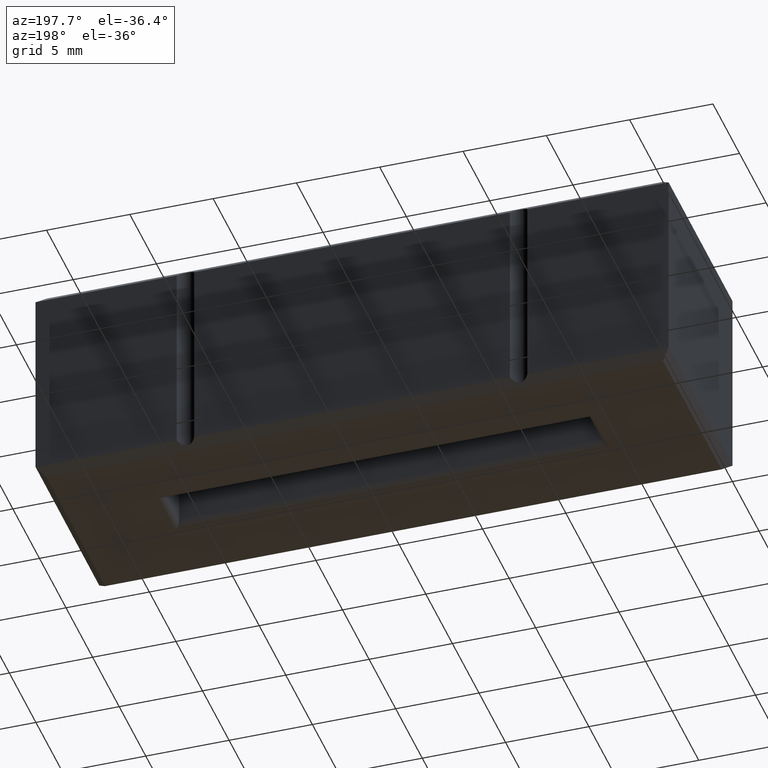
[diagram: clean part render]
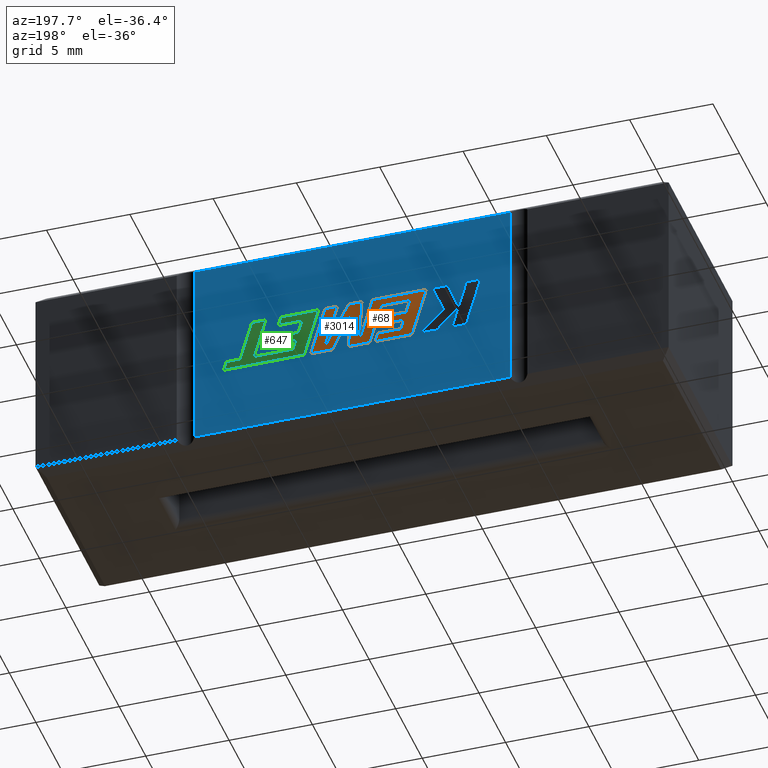
[diagram: same view with three faces highlighted in distinct colors, each labeled with its STEP entity id]
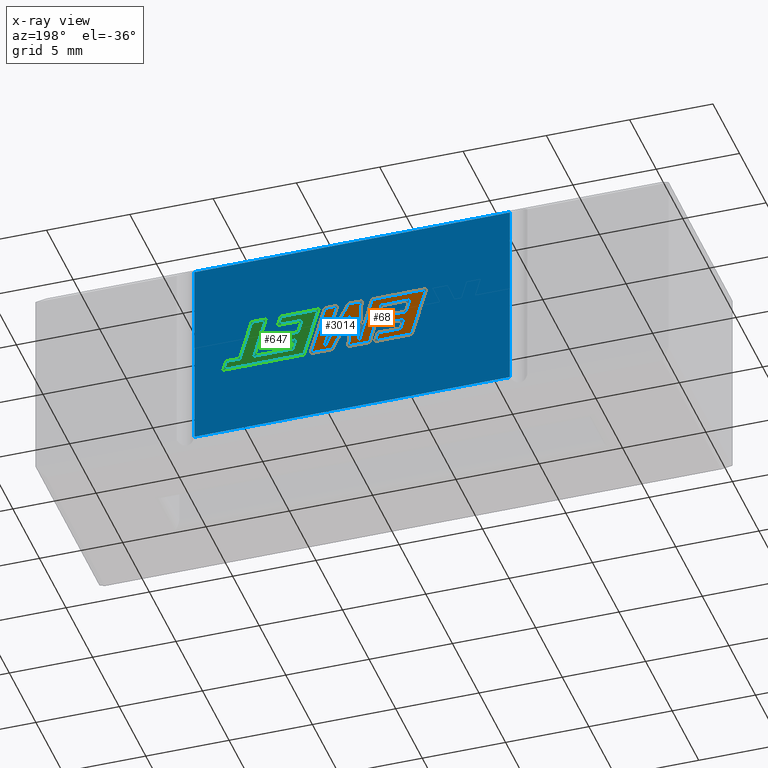
[diagram: x-ray of the same camera — body ghosted, the three highlighted faces saturated]
A machine part, auxiliary view with three faces highlighted in distinct colors.
The next image is the same camera in x-ray (body ghosted, the three faces saturated) — at least one of them is partly hidden behind the body in this view.
Their STEP definitions:

[orange] entity #68 — the highlighted planar face has unit normal (0, -1, 0).
#1 = LINE ( 'NONE', #1008, #2991 ) ;
#32 = VECTOR ( 'NONE', #949, 1000.000000000000114 ) ;
#36 = CARTESIAN_POINT ( 'NONE',  ( 20.64187375165472460, 12.00099999999999945, 5.155804350488072174 ) ) ;
#57 = CARTESIAN_POINT ( 'NONE',  ( 17.06505394035912460, 12.00099999999999945, 6.534160356962032346 ) ) ;
#58 = LINE ( 'NONE', #2040, #3263 ) ;
#68 = ADVANCED_FACE ( 'NONE', ( #1270 ), #1221, .F. ) ;
#84 = VERTEX_POINT ( 'NONE', #2493 ) ;
#103 = CARTESIAN_POINT ( 'NONE',  ( 17.63175278934695811, 12.00099999999999945, 4.836932798821948154 ) ) ;
#136 = ORIENTED_EDGE ( 'NONE', *, *, #1530, .T. ) ;
#137 = LINE ( 'NONE', #1181, #2896 ) ;
#157 = CARTESIAN_POINT ( 'NONE',  ( 17.06505394035912460, 12.00099999999999945, 6.534160356962032346 ) ) ;
#158 = EDGE_CURVE ( 'NONE', #959, #2634, #58, .T. ) ;
#162 = CARTESIAN_POINT ( 'NONE',  ( 19.22131242482318569, 12.00099999999999945, 4.836932798821947266 ) ) ;
#171 = CARTESIAN_POINT ( 'NONE',  ( 17.78532644624192471, 12.00099999999999945, 7.861159625087134728 ) ) ;
#181 = ORIENTED_EDGE ( 'NONE', *, *, #2639, .T. ) ;
#219 = VECTOR ( 'NONE', #3251, 1000.000000000000000 ) ;
#258 = CARTESIAN_POINT ( 'NONE',  ( 17.93340121282047406, 12.00099999999999945, 4.836932798821947266 ) ) ;
#268 = CARTESIAN_POINT ( 'NONE',  ( 20.64187375165472460, 12.00099999999999945, 5.155804350488072174 ) ) ;
#273 = CARTESIAN_POINT ( 'NONE',  ( 17.78532644624192471, 12.00099999999999945, 7.861159625087134728 ) ) ;
#287 = DIRECTION ( 'NONE',  ( 0.2740217765954066076, 0.000000000000000000, -0.9617234872620595842 ) ) ;
#299 = VERTEX_POINT ( 'NONE', #2487 ) ;
#314 = ORIENTED_EDGE ( 'NONE', *, *, #603, .T. ) ;
#316 = DIRECTION ( 'NONE',  ( 1.000000000000000000, 0.000000000000000000, 0.000000000000000000 ) ) ;
#320 = EDGE_CURVE ( 'NONE', #878, #339, #2732, .T. ) ;
#339 = VERTEX_POINT ( 'NONE', #926 ) ;
#349 = LINE ( 'NONE', #1387, #2985 ) ;
#356 = ORIENTED_EDGE ( 'NONE', *, *, #3039, .T. ) ;
#361 = CARTESIAN_POINT ( 'NONE',  ( 15.39755535897003114, 12.00099999999999945, 4.836932798821948154 ) ) ;
#364 = DIRECTION ( 'NONE',  ( -1.000000000000000000, 0.000000000000000000, 0.000000000000000000 ) ) ;
#366 = EDGE_CURVE ( 'NONE', #1460, #1874, #2460, .T. ) ;
#381 = VECTOR ( 'NONE', #2129, 1000.000000000000000 ) ;
#392 = LINE ( 'NONE', #927, #2909 ) ;
#398 = VECTOR ( 'NONE', #316, 1000.000000000000000 ) ;
#402 = VECTOR ( 'NONE', #1539, 1000.000000000000114 ) ;
#430 = DIRECTION ( 'NONE',  ( 0.000000000000000000, -1.000000000000000000, 0.000000000000000000 ) ) ;
#434 = EDGE_CURVE ( 'NONE', #694, #3030, #1, .T. ) ;
#507 = CARTESIAN_POINT ( 'NONE',  ( 19.21370584693255168, 12.00099999999999945, 7.861159625087134728 ) ) ;
#510 = EDGE_CURVE ( 'NONE', #2709, #1291, #1971, .T. ) ;
#520 = ORIENTED_EDGE ( 'NONE', *, *, #997, .T. ) ;
#570 = LINE ( 'NONE', #1818, #402 ) ;
#603 = EDGE_CURVE ( 'NONE', #2162, #2374, #570, .T. ) ;
#604 = VECTOR ( 'NONE', #1018, 1000.000000000000114 ) ;
#605 = VERTEX_POINT ( 'NONE', #3092 ) ;
#660 = ORIENTED_EDGE ( 'NONE', *, *, #1171, .T. ) ;
#680 = CARTESIAN_POINT ( 'NONE',  ( 17.22474259180902223, 12.00099999999999945, 5.975084558317764305 ) ) ;
#694 = VERTEX_POINT ( 'NONE', #943 ) ;
#778 = CARTESIAN_POINT ( 'NONE',  ( 18.40747402078669381, 12.00099999999999945, 7.861159625087134728 ) ) ;
#833 = CARTESIAN_POINT ( 'NONE',  ( 18.40747402078669381, 12.00099999999999945, 7.861159625087134728 ) ) ;
#872 = DIRECTION ( 'NONE',  ( 0.2793947940878254155, 0.000000000000000000, -0.9601763114327604987 ) ) ;
#878 = VERTEX_POINT ( 'NONE', #1805 ) ;
#899 = LINE ( 'NONE', #1970, #2265 ) ;
#904 = ORIENTED_EDGE ( 'NONE', *, *, #434, .T. ) ;
#926 = CARTESIAN_POINT ( 'NONE',  ( 15.92670907585014639, 12.00099999999999945, 5.975084558317764305 ) ) ;
#927 = CARTESIAN_POINT ( 'NONE',  ( 14.52730462037847836, 12.00099999999999945, 7.861159625087134728 ) ) ;
#943 = CARTESIAN_POINT ( 'NONE',  ( 17.46825721046975843, 12.00099999999999945, 5.412578846798971277 ) ) ;
#949 = DIRECTION ( 'NONE',  ( -0.2765379750249967183, 0.000000000000000000, 0.9610029908221275896 ) ) ;
#954 = DIRECTION ( 'NONE',  ( 0.2732148821746252509, 0.000000000000000000, -0.9619530280415492518 ) ) ;
#956 = CARTESIAN_POINT ( 'NONE',  ( 15.92670907585014639, 12.00099999999999945, 5.975084558317764305 ) ) ;
#959 = VERTEX_POINT ( 'NONE', #2687 ) ;
#997 = EDGE_CURVE ( 'NONE', #2913, #605, #349, .T. ) ;
#1008 = CARTESIAN_POINT ( 'NONE',  ( 17.46825721046975843, 12.00099999999999945, 5.412578846798971277 ) ) ;
#1018 = DIRECTION ( 'NONE',  ( -0.2762517575166442696, 0.000000000000000000, 0.9610853065513825788 ) ) ;
#1053 = CARTESIAN_POINT ( 'NONE',  ( 15.76720433393765930, 12.00099999999999945, 6.534160356962032346 ) ) ;
#1138 = EDGE_CURVE ( 'NONE', #1807, #694, #2610, .T. ) ;
#1164 = CARTESIAN_POINT ( 'NONE',  ( 17.93340121282047406, 12.00099999999999945, 4.836932798821947266 ) ) ;
#1171 = EDGE_CURVE ( 'NONE', #605, #1330, #1819, .T. ) ;
#1180 = DIRECTION ( 'NONE',  ( 1.000000000000000000, 0.000000000000000000, 0.000000000000000000 ) ) ;
#1181 = CARTESIAN_POINT ( 'NONE',  ( 17.63175278934695811, 12.00099999999999945, 4.836932798821948154 ) ) ;
#1192 = VECTOR ( 'NONE', #2036, 1000.000000000000000 ) ;
#1221 = PLANE ( 'NONE',  #3269 ) ;
#1251 = CARTESIAN_POINT ( 'NONE',  ( 15.55304167746695043, 12.00099999999999945, 7.285798636887586888 ) ) ;
#1268 = ORIENTED_EDGE ( 'NONE', *, *, #320, .T. ) ;
#1270 = FACE_OUTER_BOUND ( 'NONE', #2669, .T. ) ;
#1278 = DIRECTION ( 'NONE',  ( -0.2760118818968571586, 0.000000000000000000, 0.9611542233438685745 ) ) ;
#1291 = VERTEX_POINT ( 'NONE', #157 ) ;
#1292 = VECTOR ( 'NONE', #1658, 1000.000000000000114 ) ;
#1314 = LINE ( 'NONE', #956, #3279 ) ;
#1326 = VECTOR ( 'NONE', #3041, 1000.000000000000227 ) ;
#1330 = VERTEX_POINT ( 'NONE', #1420 ) ;
#1351 = ORIENTED_EDGE ( 'NONE', *, *, #2178, .T. ) ;
#1367 = ORIENTED_EDGE ( 'NONE', *, *, #2706, .T. ) ;
#1387 = CARTESIAN_POINT ( 'NONE',  ( 20.63348747674318062, 12.00099999999999945, 7.861159625087134728 ) ) ;
#1420 = CARTESIAN_POINT ( 'NONE',  ( 20.17656967092860754, 12.00099999999999945, 4.836932798821947266 ) ) ;
#1431 = CARTESIAN_POINT ( 'NONE',  ( 19.10500930886436066, 12.00099999999999945, 6.997479300053103479 ) ) ;
#1455 = CARTESIAN_POINT ( 'NONE',  ( 15.76720433393765930, 12.00099999999999945, 6.534160356962032346 ) ) ;
#1460 = VERTEX_POINT ( 'NONE', #1690 ) ;
#1468 = EDGE_CURVE ( 'NONE', #84, #1683, #3173, .T. ) ;
#1478 = DIRECTION ( 'NONE',  ( 1.000000000000000000, 0.000000000000000000, 0.000000000000000000 ) ) ;
#1511 = ORIENTED_EDGE ( 'NONE', *, *, #3243, .T. ) ;
#1518 = ORIENTED_EDGE ( 'NONE', *, *, #2553, .T. ) ;
#1530 = EDGE_CURVE ( 'NONE', #2634, #2709, #2561, .T. ) ;
#1531 = VERTEX_POINT ( 'NONE', #273 ) ;
#1539 = DIRECTION ( 'NONE',  ( -0.05596501978067924821, 0.000000000000000000, 0.9984327301130246912 ) ) ;
#1627 = LINE ( 'NONE', #1431, #1292 ) ;
#1658 = DIRECTION ( 'NONE',  ( 0.05375259206908789694, 0.000000000000000000, -0.9985542843760945031 ) ) ;
#1683 = VERTEX_POINT ( 'NONE', #1164 ) ;
#1690 = CARTESIAN_POINT ( 'NONE',  ( 19.21370584693255168, 12.00099999999999945, 7.861159625087134728 ) ) ;
#1699 = CARTESIAN_POINT ( 'NONE',  ( -20.99801050622235010, 12.00099999999999945, 0.000000000000000000 ) ) ;
#1725 = EDGE_CURVE ( 'NONE', #1531, #2162, #1897, .T. ) ;
#1729 = LINE ( 'NONE', #2420, #32 ) ;
#1750 = EDGE_CURVE ( 'NONE', #2434, #1531, #392, .T. ) ;
#1755 = CARTESIAN_POINT ( 'NONE',  ( 19.86498469222380336, 12.00099999999999945, 7.861159625087134728 ) ) ;
#1780 = ORIENTED_EDGE ( 'NONE', *, *, #1468, .T. ) ;
#1787 = VECTOR ( 'NONE', #2679, 1000.000000000000227 ) ;
#1805 = CARTESIAN_POINT ( 'NONE',  ( 17.22474259180902223, 12.00099999999999945, 5.975084558317764305 ) ) ;
#1807 = VERTEX_POINT ( 'NONE', #1860 ) ;
#1818 = CARTESIAN_POINT ( 'NONE',  ( 18.55839018729306744, 12.00099999999999945, 5.168769972878560992 ) ) ;
#1819 = LINE ( 'NONE', #2337, #2541 ) ;
#1837 = CARTESIAN_POINT ( 'NONE',  ( 16.09038856426462871, 12.00099999999999945, 5.412578846798971277 ) ) ;
#1860 = CARTESIAN_POINT ( 'NONE',  ( 16.09038856426462871, 12.00099999999999945, 5.412578846798971277 ) ) ;
#1874 = VERTEX_POINT ( 'NONE', #36 ) ;
#1890 = EDGE_CURVE ( 'NONE', #339, #1807, #1314, .T. ) ;
#1897 = LINE ( 'NONE', #171, #1787 ) ;
#1909 = EDGE_CURVE ( 'NONE', #299, #2913, #2915, .T. ) ;
#1970 = CARTESIAN_POINT ( 'NONE',  ( 20.17656967092860754, 12.00099999999999945, 4.836932798821947266 ) ) ;
#1971 = LINE ( 'NONE', #1455, #2886 ) ;
#2036 = DIRECTION ( 'NONE',  ( 1.000000000000000000, 0.000000000000000000, 0.000000000000000000 ) ) ;
#2040 = CARTESIAN_POINT ( 'NONE',  ( 17.22950584882248748, 12.00099999999999945, 7.285798636887586888 ) ) ;
#2056 = VERTEX_POINT ( 'NONE', #361 ) ;
#2058 = DIRECTION ( 'NONE',  ( -1.000000000000000000, 0.000000000000000000, 0.000000000000000000 ) ) ;
#2129 = DIRECTION ( 'NONE',  ( 0.2746459304916928357, 0.000000000000000000, -0.9615454294334471186 ) ) ;
#2162 = VERTEX_POINT ( 'NONE', #2443 ) ;
#2178 = EDGE_CURVE ( 'NONE', #1330, #3104, #899, .T. ) ;
#2213 = ORIENTED_EDGE ( 'NONE', *, *, #1725, .T. ) ;
#2265 = VECTOR ( 'NONE', #2936, 1000.000000000000000 ) ;
#2274 = VECTOR ( 'NONE', #1478, 1000.000000000000000 ) ;
#2278 = CARTESIAN_POINT ( 'NONE',  ( 20.63348747674318062, 12.00099999999999945, 7.861159625087134728 ) ) ;
#2296 = DIRECTION ( 'NONE',  ( 0.000000000000000000, 0.000000000000000000, -1.000000000000000000 ) ) ;
#2308 = ORIENTED_EDGE ( 'NONE', *, *, #158, .T. ) ;
#2327 = LINE ( 'NONE', #778, #1192 ) ;
#2337 = CARTESIAN_POINT ( 'NONE',  ( 21.50297498832534870, 12.00099999999999945, 4.836932798821947266 ) ) ;
#2374 = VERTEX_POINT ( 'NONE', #833 ) ;
#2382 = ORIENTED_EDGE ( 'NONE', *, *, #510, .T. ) ;
#2420 = CARTESIAN_POINT ( 'NONE',  ( 15.39755535897003114, 12.00099999999999945, 4.836932798821948154 ) ) ;
#2434 = VERTEX_POINT ( 'NONE', #3105 ) ;
#2443 = CARTESIAN_POINT ( 'NONE',  ( 18.55839018729306744, 12.00099999999999945, 5.168769972878560992 ) ) ;
#2456 = DIRECTION ( 'NONE',  ( -1.000000000000000000, 0.000000000000000000, 0.000000000000000000 ) ) ;
#2460 = LINE ( 'NONE', #507, #1326 ) ;
#2487 = CARTESIAN_POINT ( 'NONE',  ( 19.86498469222380336, 12.00099999999999945, 7.861159625087134728 ) ) ;
#2493 = CARTESIAN_POINT ( 'NONE',  ( 19.22131242482318569, 12.00099999999999945, 4.836932798821947266 ) ) ;
#2520 = ORIENTED_EDGE ( 'NONE', *, *, #1750, .T. ) ;
#2524 = LINE ( 'NONE', #268, #3002 ) ;
#2529 = DIRECTION ( 'NONE',  ( 1.000000000000000000, 0.000000000000000000, 0.000000000000000000 ) ) ;
#2540 = ORIENTED_EDGE ( 'NONE', *, *, #1909, .T. ) ;
#2541 = VECTOR ( 'NONE', #2576, 1000.000000000000000 ) ;
#2547 = EDGE_CURVE ( 'NONE', #2056, #2434, #1729, .T. ) ;
#2549 = VECTOR ( 'NONE', #364, 1000.000000000000000 ) ;
#2550 = ORIENTED_EDGE ( 'NONE', *, *, #2547, .T. ) ;
#2553 = EDGE_CURVE ( 'NONE', #3030, #2056, #137, .T. ) ;
#2561 = LINE ( 'NONE', #3293, #3080 ) ;
#2576 = DIRECTION ( 'NONE',  ( -1.000000000000000000, 0.000000000000000000, 0.000000000000000000 ) ) ;
#2610 = LINE ( 'NONE', #1837, #398 ) ;
#2634 = VERTEX_POINT ( 'NONE', #1251 ) ;
#2639 = EDGE_CURVE ( 'NONE', #2374, #1460, #2327, .T. ) ;
#2669 = EDGE_LOOP ( 'NONE', ( #660, #1351, #1511, #1780, #2928, #2308, #136, #2382, #356, #1268, #3248, #3250, #904, #1518, #2550, #2520, #2213, #314, #181, #3206, #1367, #2540, #520 ) ) ;
#2679 = DIRECTION ( 'NONE',  ( 0.2759782365590778275, 0.000000000000000000, -0.9611638845408942977 ) ) ;
#2687 = CARTESIAN_POINT ( 'NONE',  ( 17.22950584882248748, 12.00099999999999945, 7.285798636887586888 ) ) ;
#2706 = EDGE_CURVE ( 'NONE', #1874, #299, #2524, .T. ) ;
#2709 = VERTEX_POINT ( 'NONE', #1053 ) ;
#2732 = LINE ( 'NONE', #680, #219 ) ;
#2822 = LINE ( 'NONE', #258, #604 ) ;
#2886 = VECTOR ( 'NONE', #2529, 1000.000000000000000 ) ;
#2888 = DIRECTION ( 'NONE',  ( 0.2763139702539137987, 0.000000000000000000, -0.9610674221107066151 ) ) ;
#2896 = VECTOR ( 'NONE', #2456, 1000.000000000000000 ) ;
#2898 = CARTESIAN_POINT ( 'NONE',  ( 19.10500930886436066, 12.00099999999999945, 6.997479300053103479 ) ) ;
#2904 = EDGE_CURVE ( 'NONE', #1683, #959, #2822, .T. ) ;
#2909 = VECTOR ( 'NONE', #1180, 1000.000000000000000 ) ;
#2913 = VERTEX_POINT ( 'NONE', #2278 ) ;
#2915 = LINE ( 'NONE', #1755, #2274 ) ;
#2928 = ORIENTED_EDGE ( 'NONE', *, *, #2904, .T. ) ;
#2936 = DIRECTION ( 'NONE',  ( -0.4443210308329511027, 0.000000000000000000, 0.8958676361826806156 ) ) ;
#2985 = VECTOR ( 'NONE', #2888, 1000.000000000000227 ) ;
#2991 = VECTOR ( 'NONE', #954, 1000.000000000000000 ) ;
#3002 = VECTOR ( 'NONE', #1278, 1000.000000000000114 ) ;
#3030 = VERTEX_POINT ( 'NONE', #103 ) ;
#3039 = EDGE_CURVE ( 'NONE', #1291, #878, #3088, .T. ) ;
#3041 = DIRECTION ( 'NONE',  ( 0.4668459304955216993, 0.000000000000000000, -0.8843386665637608113 ) ) ;
#3080 = VECTOR ( 'NONE', #287, 1000.000000000000114 ) ;
#3088 = LINE ( 'NONE', #57, #381 ) ;
#3092 = CARTESIAN_POINT ( 'NONE',  ( 21.50297498832534870, 12.00099999999999945, 4.836932798821947266 ) ) ;
#3104 = VERTEX_POINT ( 'NONE', #2898 ) ;
#3105 = CARTESIAN_POINT ( 'NONE',  ( 14.52730462037847836, 12.00099999999999945, 7.861159625087134728 ) ) ;
#3173 = LINE ( 'NONE', #162, #2549 ) ;
#3206 = ORIENTED_EDGE ( 'NONE', *, *, #366, .T. ) ;
#3243 = EDGE_CURVE ( 'NONE', #3104, #84, #1627, .T. ) ;
#3248 = ORIENTED_EDGE ( 'NONE', *, *, #1890, .T. ) ;
#3250 = ORIENTED_EDGE ( 'NONE', *, *, #1138, .T. ) ;
#3251 = DIRECTION ( 'NONE',  ( -1.000000000000000000, 0.000000000000000000, 0.000000000000000000 ) ) ;
#3263 = VECTOR ( 'NONE', #2058, 1000.000000000000000 ) ;
#3269 = AXIS2_PLACEMENT_3D ( 'NONE', #1699, #430, #2296 ) ;
#3279 = VECTOR ( 'NONE', #872, 1000.000000000000114 ) ;
#3293 = CARTESIAN_POINT ( 'NONE',  ( 15.55304167746695043, 12.00099999999999945, 7.285798636887586888 ) ) ;

[blue] entity #3014 — the highlighted planar face has unit normal (0, -1, 0).
#87 = EDGE_LOOP ( 'NONE', ( #1579, #2536, #1877, #257 ) ) ;
#257 = ORIENTED_EDGE ( 'NONE', *, *, #1705, .T. ) ;
#292 = CARTESIAN_POINT ( 'NONE',  ( 28.47331654267860301, 12.00000000000000000, 12.19999999999999574 ) ) ;
#300 = CARTESIAN_POINT ( 'NONE',  ( 0.000000000000000000, 12.00000000000000000, 0.5000000000000004441 ) ) ;
#311 = DIRECTION ( 'NONE',  ( 0.000000000000000000, -0.000000000000000000, -1.000000000000000000 ) ) ;
#412 = CARTESIAN_POINT ( 'NONE',  ( 28.47331654267860301, 12.00000000000000000, 0.000000000000000000 ) ) ;
#662 = CARTESIAN_POINT ( 'NONE',  ( 9.526683457321398762, 12.00000000000000000, 0.5000000000000004441 ) ) ;
#780 = FACE_OUTER_BOUND ( 'NONE', #87, .T. ) ;
#858 = CARTESIAN_POINT ( 'NONE',  ( 9.526683457321398762, 12.00000000000000000, 0.000000000000000000 ) ) ;
#877 = DIRECTION ( 'NONE',  ( 1.000000000000000000, 0.000000000000000000, 0.000000000000000000 ) ) ;
#965 = LINE ( 'NONE', #412, #2367 ) ;
#1135 = VECTOR ( 'NONE', #1866, 1000.000000000000000 ) ;
#1213 = VERTEX_POINT ( 'NONE', #1523 ) ;
#1311 = VECTOR ( 'NONE', #877, 1000.000000000000000 ) ;
#1523 = CARTESIAN_POINT ( 'NONE',  ( 9.526683457321398762, 12.00000000000000000, 12.19999999999999574 ) ) ;
#1551 = DIRECTION ( 'NONE',  ( -1.000000000000000000, 0.000000000000000000, 0.000000000000000000 ) ) ;
#1579 = ORIENTED_EDGE ( 'NONE', *, *, #2505, .F. ) ;
#1643 = LINE ( 'NONE', #1659, #1311 ) ;
#1659 = CARTESIAN_POINT ( 'NONE',  ( 0.000000000000000000, 12.00000000000000000, 12.19999999999999574 ) ) ;
#1705 = EDGE_CURVE ( 'NONE', #1213, #1984, #1643, .T. ) ;
#1770 = CARTESIAN_POINT ( 'NONE',  ( 28.47331654267860301, 12.00000000000000000, 0.5000000000000004441 ) ) ;
#1798 = PLANE ( 'NONE',  #1994 ) ;
#1866 = DIRECTION ( 'NONE',  ( -0.000000000000000000, -0.000000000000000000, 1.000000000000000000 ) ) ;
#1877 = ORIENTED_EDGE ( 'NONE', *, *, #2401, .T. ) ;
#1984 = VERTEX_POINT ( 'NONE', #292 ) ;
#1994 = AXIS2_PLACEMENT_3D ( 'NONE', #3119, #2106, #311 ) ;
#2021 = VERTEX_POINT ( 'NONE', #1770 ) ;
#2106 = DIRECTION ( 'NONE',  ( 0.000000000000000000, -1.000000000000000000, 0.000000000000000000 ) ) ;
#2367 = VECTOR ( 'NONE', #2438, 1000.000000000000000 ) ;
#2401 = EDGE_CURVE ( 'NONE', #3208, #1213, #2403, .T. ) ;
#2403 = LINE ( 'NONE', #858, #1135 ) ;
#2438 = DIRECTION ( 'NONE',  ( -0.000000000000000000, -0.000000000000000000, 1.000000000000000000 ) ) ;
#2505 = EDGE_CURVE ( 'NONE', #2021, #1984, #965, .T. ) ;
#2536 = ORIENTED_EDGE ( 'NONE', *, *, #3139, .T. ) ;
#2787 = VECTOR ( 'NONE', #1551, 1000.000000000000000 ) ;
#2879 = LINE ( 'NONE', #300, #2787 ) ;
#3014 = ADVANCED_FACE ( 'NONE', ( #780 ), #1798, .F. ) ;
#3119 = CARTESIAN_POINT ( 'NONE',  ( 0.000000000000000000, 12.00000000000000000, 12.69999999999999929 ) ) ;
#3139 = EDGE_CURVE ( 'NONE', #2021, #3208, #2879, .T. ) ;
#3208 = VERTEX_POINT ( 'NONE', #662 ) ;

[green] entity #647 — the highlighted planar face has unit normal (0, 1, 0).
#12 = DIRECTION ( 'NONE',  ( 0.2746918797667357026, 0.000000000000000000, -0.9615323037684262442 ) ) ;
#48 = EDGE_CURVE ( 'NONE', #873, #1995, #1502, .T. ) ;
#53 = LINE ( 'NONE', #2369, #3224 ) ;
#72 = CARTESIAN_POINT ( 'NONE',  ( 22.55977436389350643, 12.00099999999999945, 5.412679997048085667 ) ) ;
#80 = VECTOR ( 'NONE', #415, 1000.000000000000000 ) ;
#85 = EDGE_CURVE ( 'NONE', #2668, #2676, #2243, .T. ) ;
#124 = EDGE_CURVE ( 'NONE', #2504, #2849, #829, .T. ) ;
#144 = VECTOR ( 'NONE', #261, 1000.000000000000114 ) ;
#174 = DIRECTION ( 'NONE',  ( 0.2762437428917298710, 0.000000000000000000, -0.9610876102172828395 ) ) ;
#180 = EDGE_CURVE ( 'NONE', #1397, #903, #1568, .T. ) ;
#213 = DIRECTION ( 'NONE',  ( -0.2763173343569872986, 0.000000000000000000, 0.9610664548998933965 ) ) ;
#233 = EDGE_CURVE ( 'NONE', #2676, #3270, #1896, .T. ) ;
#234 = ORIENTED_EDGE ( 'NONE', *, *, #2890, .T. ) ;
#249 = VECTOR ( 'NONE', #1112, 1000.000000000000227 ) ;
#261 = DIRECTION ( 'NONE',  ( 0.2793947940814895392, 0.000000000000000000, -0.9601763114346041350 ) ) ;
#274 = DIRECTION ( 'NONE',  ( 0.2729786930695201064, 0.000000000000000000, -0.9620200793798727723 ) ) ;
#275 = CARTESIAN_POINT ( 'NONE',  ( 23.44562982431637721, 12.00099999999999945, 7.285688291172840003 ) ) ;
#295 = ORIENTED_EDGE ( 'NONE', *, *, #621, .T. ) ;
#308 = ORIENTED_EDGE ( 'NONE', *, *, #233, .T. ) ;
#345 = CARTESIAN_POINT ( 'NONE',  ( 20.99744445153487860, 12.00099999999999945, 7.861159625087134728 ) ) ;
#346 = CARTESIAN_POINT ( 'NONE',  ( 23.69392609095033819, 12.00099999999999945, 5.975185708568481857 ) ) ;
#353 = CARTESIAN_POINT ( 'NONE',  ( 25.02491619603600626, 12.00099999999999945, 7.861159625087134728 ) ) ;
#383 = VECTOR ( 'NONE', #700, 1000.000000000000000 ) ;
#415 = DIRECTION ( 'NONE',  ( 0.9999891854650021505, 0.000000000000000000, 0.004650693823674155805 ) ) ;
#441 = CARTESIAN_POINT ( 'NONE',  ( 23.44562982431637721, 12.00099999999999945, 7.285688291172840003 ) ) ;
#443 = ORIENTED_EDGE ( 'NONE', *, *, #180, .T. ) ;
#454 = CARTESIAN_POINT ( 'NONE',  ( 23.94564307498535882, 12.00099999999999945, 5.416578879244958955 ) ) ;
#479 = VERTEX_POINT ( 'NONE', #1719 ) ;
#485 = LINE ( 'NONE', #1271, #1033 ) ;
#546 = CARTESIAN_POINT ( 'NONE',  ( 23.69392609095033819, 12.00099999999999945, 5.975185708568481857 ) ) ;
#548 = ORIENTED_EDGE ( 'NONE', *, *, #124, .T. ) ;
#550 = DIRECTION ( 'NONE',  ( 0.9999960426590095430, 0.000000000000000000, 0.002813301676026185808 ) ) ;
#553 = DIRECTION ( 'NONE',  ( 0.2745159998572712090, 0.000000000000000000, -0.9615825319869131249 ) ) ;
#564 = AXIS2_PLACEMENT_3D ( 'NONE', #1943, #1105, #2728 ) ;
#572 = DIRECTION ( 'NONE',  ( -0.2764273280489758511, 0.000000000000000000, 0.9610348236706637293 ) ) ;
#621 = EDGE_CURVE ( 'NONE', #804, #2504, #1321, .T. ) ;
#647 = ADVANCED_FACE ( 'NONE', ( #1193 ), #2484, .T. ) ;
#651 = LINE ( 'NONE', #454, #80 ) ;
#670 = VERTEX_POINT ( 'NONE', #345 ) ;
#677 = VERTEX_POINT ( 'NONE', #441 ) ;
#698 = CARTESIAN_POINT ( 'NONE',  ( 20.99744445153487860, 12.00099999999999945, 7.861159625087134728 ) ) ;
#700 = DIRECTION ( 'NONE',  ( 0.2762033010288795776, 0.000000000000000000, -0.9610992334305288320 ) ) ;
#792 = CARTESIAN_POINT ( 'NONE',  ( 25.72632878125924805, 12.00099999999999945, 5.420854776000488151 ) ) ;
#796 = CARTESIAN_POINT ( 'NONE',  ( 22.23659013357378100, 12.00099999999999945, 6.534160356968381933 ) ) ;
#798 = CARTESIAN_POINT ( 'NONE',  ( 22.02204126707917453, 12.00099999999999945, 7.285688291172840003 ) ) ;
#804 = VERTEX_POINT ( 'NONE', #974 ) ;
#806 = ORIENTED_EDGE ( 'NONE', *, *, #1954, .T. ) ;
#829 = LINE ( 'NONE', #72, #2725 ) ;
#836 = CARTESIAN_POINT ( 'NONE',  ( 26.55433417725504697, 12.00099999999999945, 5.420920510083144350 ) ) ;
#860 = CARTESIAN_POINT ( 'NONE',  ( 23.28233654593474711, 12.00099999999999945, 7.861159625087134728 ) ) ;
#873 = VERTEX_POINT ( 'NONE', #836 ) ;
#903 = VERTEX_POINT ( 'NONE', #1669 ) ;
#908 = CARTESIAN_POINT ( 'NONE',  ( 22.55977436389350643, 12.00099999999999945, 5.412679997048085667 ) ) ;
#974 = CARTESIAN_POINT ( 'NONE',  ( 22.39609487548258571, 12.00099999999999945, 5.975185708568481857 ) ) ;
#995 = EDGE_LOOP ( 'NONE', ( #548, #1312, #2685, #308, #1962, #1093, #2830, #1276, #2144, #2122, #2183, #806, #1595, #443, #234, #1144, #295 ) ) ;
#1016 = CARTESIAN_POINT ( 'NONE',  ( 22.02204126707917453, 12.00099999999999945, 7.285688291172840003 ) ) ;
#1025 = DIRECTION ( 'NONE',  ( -1.000000000000000000, 0.000000000000000000, 0.000000000000000000 ) ) ;
#1033 = VECTOR ( 'NONE', #274, 1000.000000000000114 ) ;
#1093 = ORIENTED_EDGE ( 'NONE', *, *, #1830, .T. ) ;
#1105 = DIRECTION ( 'NONE',  ( 0.000000000000000000, 1.000000000000000000, 0.000000000000000000 ) ) ;
#1112 = DIRECTION ( 'NONE',  ( 0.9999999968487351953, 0.000000000000000000, 7.938847109813128224E-05 ) ) ;
#1144 = ORIENTED_EDGE ( 'NONE', *, *, #1366, .T. ) ;
#1153 = LINE ( 'NONE', #1339, #2910 ) ;
#1189 = VECTOR ( 'NONE', #553, 1000.000000000000114 ) ;
#1193 = FACE_OUTER_BOUND ( 'NONE', #995, .T. ) ;
#1253 = LINE ( 'NONE', #3000, #3113 ) ;
#1271 = CARTESIAN_POINT ( 'NONE',  ( 23.28233654593474711, 12.00099999999999945, 7.861159625087134728 ) ) ;
#1276 = ORIENTED_EDGE ( 'NONE', *, *, #1826, .T. ) ;
#1299 = VECTOR ( 'NONE', #2932, 1000.000000000000000 ) ;
#1310 = VERTEX_POINT ( 'NONE', #860 ) ;
#1312 = ORIENTED_EDGE ( 'NONE', *, *, #2200, .T. ) ;
#1321 = LINE ( 'NONE', #2350, #144 ) ;
#1339 = CARTESIAN_POINT ( 'NONE',  ( 21.86731817557487290, 12.00099999999999945, 4.836932798821947266 ) ) ;
#1366 = EDGE_CURVE ( 'NONE', #1887, #804, #2636, .T. ) ;
#1397 = VERTEX_POINT ( 'NONE', #1880 ) ;
#1502 = LINE ( 'NONE', #2982, #383 ) ;
#1533 = CARTESIAN_POINT ( 'NONE',  ( 24.86504363505233783, 12.00099999999999945, 5.420854775992980379 ) ) ;
#1568 = LINE ( 'NONE', #796, #3046 ) ;
#1594 = LINE ( 'NONE', #792, #249 ) ;
#1595 = ORIENTED_EDGE ( 'NONE', *, *, #2313, .T. ) ;
#1669 = CARTESIAN_POINT ( 'NONE',  ( 23.53423743950395064, 12.00099999999999945, 6.534160356968381933 ) ) ;
#1677 = DIRECTION ( 'NONE',  ( 1.000000000000000000, 0.000000000000000000, 0.000000000000000000 ) ) ;
#1719 = CARTESIAN_POINT ( 'NONE',  ( 25.72632878125924805, 12.00099999999999945, 5.420854776000488151 ) ) ;
#1765 = CARTESIAN_POINT ( 'NONE',  ( 24.86504363505233783, 12.00099999999999945, 5.420854775992980379 ) ) ;
#1826 = EDGE_CURVE ( 'NONE', #1995, #3290, #53, .T. ) ;
#1830 = EDGE_CURVE ( 'NONE', #479, #873, #1594, .T. ) ;
#1880 = CARTESIAN_POINT ( 'NONE',  ( 22.23659013357378100, 12.00099999999999945, 6.534160356968381933 ) ) ;
#1887 = VERTEX_POINT ( 'NONE', #546 ) ;
#1896 = LINE ( 'NONE', #2949, #2870 ) ;
#1914 = LINE ( 'NONE', #698, #1299 ) ;
#1916 = DIRECTION ( 'NONE',  ( -1.000000000000000000, 0.000000000000000000, 0.000000000000000000 ) ) ;
#1943 = CARTESIAN_POINT ( 'NONE',  ( -20.99801050622235010, 12.00099999999999945, 0.000000000000000000 ) ) ;
#1954 = EDGE_CURVE ( 'NONE', #677, #2717, #3079, .T. ) ;
#1962 = ORIENTED_EDGE ( 'NONE', *, *, #2815, .T. ) ;
#1986 = CARTESIAN_POINT ( 'NONE',  ( 23.94564307498535882, 12.00099999999999945, 5.416578879244958955 ) ) ;
#1995 = VERTEX_POINT ( 'NONE', #2793 ) ;
#2121 = EDGE_CURVE ( 'NONE', #3290, #670, #1153, .T. ) ;
#2122 = ORIENTED_EDGE ( 'NONE', *, *, #2572, .T. ) ;
#2144 = ORIENTED_EDGE ( 'NONE', *, *, #2121, .T. ) ;
#2183 = ORIENTED_EDGE ( 'NONE', *, *, #2311, .T. ) ;
#2200 = EDGE_CURVE ( 'NONE', #2849, #2668, #651, .T. ) ;
#2243 = LINE ( 'NONE', #1765, #3111 ) ;
#2279 = VECTOR ( 'NONE', #1916, 1000.000000000000000 ) ;
#2311 = EDGE_CURVE ( 'NONE', #1310, #677, #485, .T. ) ;
#2313 = EDGE_CURVE ( 'NONE', #2717, #1397, #3273, .T. ) ;
#2350 = CARTESIAN_POINT ( 'NONE',  ( 22.39609487548258571, 12.00099999999999945, 5.975185708568481857 ) ) ;
#2369 = CARTESIAN_POINT ( 'NONE',  ( 26.72216214756244668, 12.00099999999999945, 4.836932798821946378 ) ) ;
#2476 = CARTESIAN_POINT ( 'NONE',  ( 25.02491619603600626, 12.00099999999999945, 7.861159625087134728 ) ) ;
#2484 = PLANE ( 'NONE',  #564 ) ;
#2504 = VERTEX_POINT ( 'NONE', #908 ) ;
#2533 = VECTOR ( 'NONE', #174, 1000.000000000000114 ) ;
#2571 = CARTESIAN_POINT ( 'NONE',  ( 24.16342874933627627, 12.00099999999999945, 7.861159625087134728 ) ) ;
#2572 = EDGE_CURVE ( 'NONE', #670, #1310, #1914, .T. ) ;
#2618 = DIRECTION ( 'NONE',  ( 1.000000000000000000, 0.000000000000000000, 0.000000000000000000 ) ) ;
#2636 = LINE ( 'NONE', #346, #2279 ) ;
#2668 = VERTEX_POINT ( 'NONE', #1533 ) ;
#2671 = LINE ( 'NONE', #2476, #2533 ) ;
#2676 = VERTEX_POINT ( 'NONE', #2571 ) ;
#2685 = ORIENTED_EDGE ( 'NONE', *, *, #85, .T. ) ;
#2717 = VERTEX_POINT ( 'NONE', #1016 ) ;
#2725 = VECTOR ( 'NONE', #550, 1000.000000000000114 ) ;
#2728 = DIRECTION ( 'NONE',  ( 0.000000000000000000, 0.000000000000000000, 1.000000000000000000 ) ) ;
#2793 = CARTESIAN_POINT ( 'NONE',  ( 26.72216214756244668, 12.00099999999999945, 4.836932798821946378 ) ) ;
#2815 = EDGE_CURVE ( 'NONE', #3270, #479, #2671, .T. ) ;
#2830 = ORIENTED_EDGE ( 'NONE', *, *, #48, .T. ) ;
#2849 = VERTEX_POINT ( 'NONE', #1986 ) ;
#2870 = VECTOR ( 'NONE', #1677, 1000.000000000000000 ) ;
#2890 = EDGE_CURVE ( 'NONE', #903, #1887, #1253, .T. ) ;
#2910 = VECTOR ( 'NONE', #572, 1000.000000000000114 ) ;
#2932 = DIRECTION ( 'NONE',  ( 1.000000000000000000, 0.000000000000000000, 0.000000000000000000 ) ) ;
#2949 = CARTESIAN_POINT ( 'NONE',  ( 24.16342874933627627, 12.00099999999999945, 7.861159625087134728 ) ) ;
#2982 = CARTESIAN_POINT ( 'NONE',  ( 26.55433417725504697, 12.00099999999999945, 5.420920510083144350 ) ) ;
#3000 = CARTESIAN_POINT ( 'NONE',  ( 23.53423743950395064, 12.00099999999999945, 6.534160356968381933 ) ) ;
#3010 = VECTOR ( 'NONE', #1025, 1000.000000000000000 ) ;
#3032 = CARTESIAN_POINT ( 'NONE',  ( 21.86731817557487290, 12.00099999999999945, 4.836932798821947266 ) ) ;
#3046 = VECTOR ( 'NONE', #2618, 1000.000000000000000 ) ;
#3079 = LINE ( 'NONE', #275, #3010 ) ;
#3084 = DIRECTION ( 'NONE',  ( -1.000000000000000000, 0.000000000000000000, 3.323496680779129688E-16 ) ) ;
#3111 = VECTOR ( 'NONE', #213, 1000.000000000000227 ) ;
#3113 = VECTOR ( 'NONE', #12, 1000.000000000000227 ) ;
#3224 = VECTOR ( 'NONE', #3084, 1000.000000000000000 ) ;
#3270 = VERTEX_POINT ( 'NONE', #353 ) ;
#3273 = LINE ( 'NONE', #798, #1189 ) ;
#3290 = VERTEX_POINT ( 'NONE', #3032 ) ;